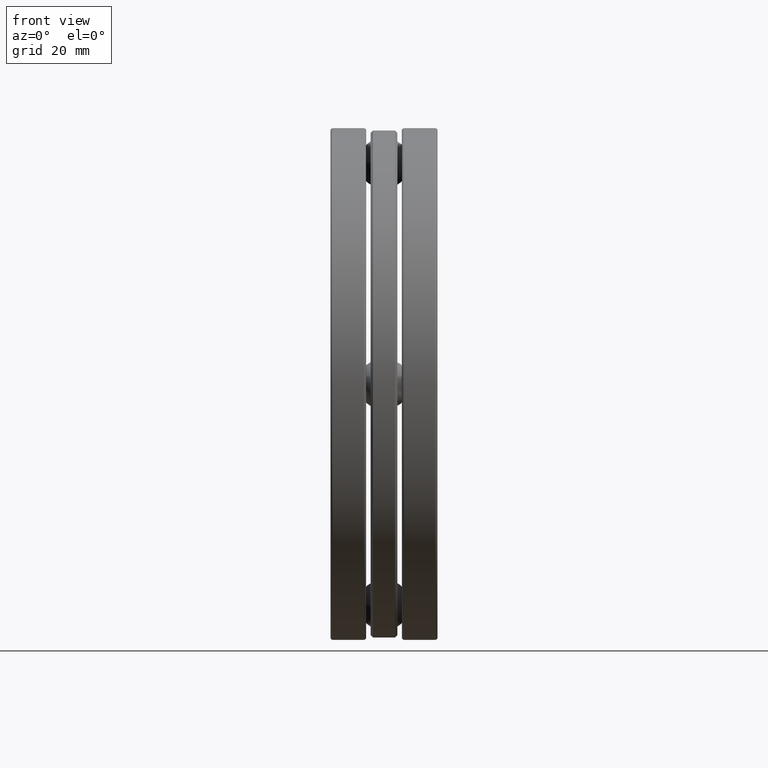
[diagram: clean part render]
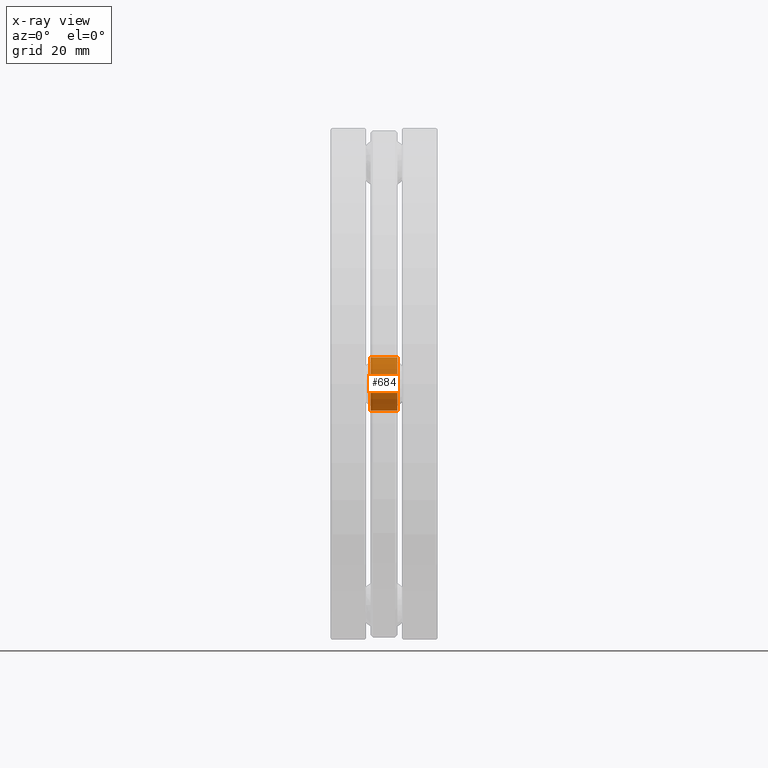
[diagram: x-ray — body ghosted, one internal face saturated and labeled with its STEP entity id]
A machine part, front view, then the same camera in x-ray: the body is ghosted and one INTERNAL B-rep face — a face not visible from any outside direction — is saturated and labeled: STEP entity #684.
In plain terms, the highlighted cylindrical surface (bore or boss wall) has radius 5.6896 mm, axis along (1, -0, -0).
Its self-contained STEP definition (entity closure, byte-faithful):
#14 = AXIS2_PLACEMENT_3D ( 'NONE', #370, #130, #263 ) ;
#38 = DIRECTION ( 'NONE',  ( 0.0000000000000000000, 0.0000000000000000000, -1.000000000000000000 ) ) ;
#49 = VERTEX_POINT ( 'NONE', #668 ) ;
#106 = AXIS2_PLACEMENT_3D ( 'NONE', #261, #200, #648 ) ;
#122 = CIRCLE ( 'NONE', #106, 0.2240000000000005300 ) ;
#130 = DIRECTION ( 'NONE',  ( -1.000000000000000000, -0.0000000000000000000, -0.0000000000000000000 ) ) ;
#149 = ORIENTED_EDGE ( 'NONE', *, *, #355, .T. ) ;
#173 = EDGE_LOOP ( 'NONE', ( #149 ) ) ;
#200 = DIRECTION ( 'NONE',  ( 1.000000000000000000, -0.0000000000000000000, 0.0000000000000000000 ) ) ;
#211 = FACE_OUTER_BOUND ( 'NONE', #173, .T. ) ;
#244 = AXIS2_PLACEMENT_3D ( 'NONE', #797, #610, #38 ) ;
#261 = CARTESIAN_POINT ( 'NONE',  ( 0.1132500000000000200, 1.870250000000000200, 0.0000000000000000000 ) ) ;
#263 = DIRECTION ( 'NONE',  ( 0.0000000000000000000, 0.0000000000000000000, -1.000000000000000000 ) ) ;
#321 = CYLINDRICAL_SURFACE ( 'NONE', #244, 0.2240000000000005300 ) ;
#355 = EDGE_CURVE ( 'NONE', #486, #486, #643, .T. ) ;
#370 = CARTESIAN_POINT ( 'NONE',  ( -0.1132499999999999500, 1.870250000000000200, 0.0000000000000000000 ) ) ;
#425 = EDGE_CURVE ( 'NONE', #49, #49, #122, .T. ) ;
#486 = VERTEX_POINT ( 'NONE', #800 ) ;
#519 = FACE_OUTER_BOUND ( 'NONE', #537, .T. ) ;
#537 = EDGE_LOOP ( 'NONE', ( #763 ) ) ;
#610 = DIRECTION ( 'NONE',  ( 1.000000000000000000, -0.0000000000000000000, -0.0000000000000000000 ) ) ;
#643 = CIRCLE ( 'NONE', #14, 0.2240000000000005300 ) ;
#648 = DIRECTION ( 'NONE',  ( 0.0000000000000000000, 0.0000000000000000000, -1.000000000000000000 ) ) ;
#668 = CARTESIAN_POINT ( 'NONE',  ( 0.1132500000000000200, 1.870250000000000200, -0.2240000000000005300 ) ) ;
#684 = ADVANCED_FACE ( 'NONE', ( #519, #211 ), #321, .F. ) ;
#763 = ORIENTED_EDGE ( 'NONE', *, *, #425, .T. ) ;
#797 = CARTESIAN_POINT ( 'NONE',  ( -0.4530393700787400700, 1.870250000000000200, 0.0000000000000000000 ) ) ;
#800 = CARTESIAN_POINT ( 'NONE',  ( -0.1132499999999999500, 1.870250000000000200, -0.2240000000000005300 ) ) ;